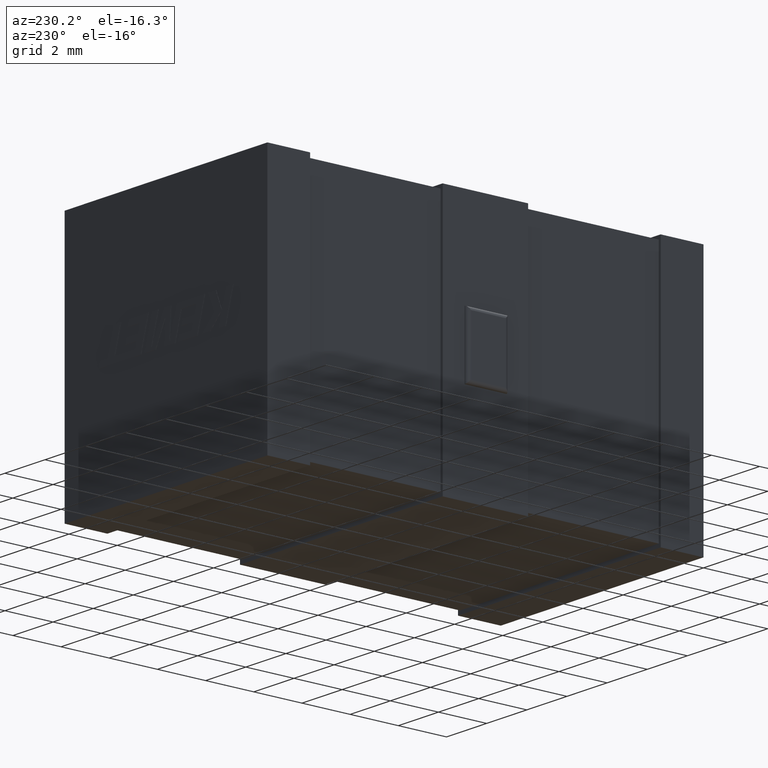
[diagram: clean part render]
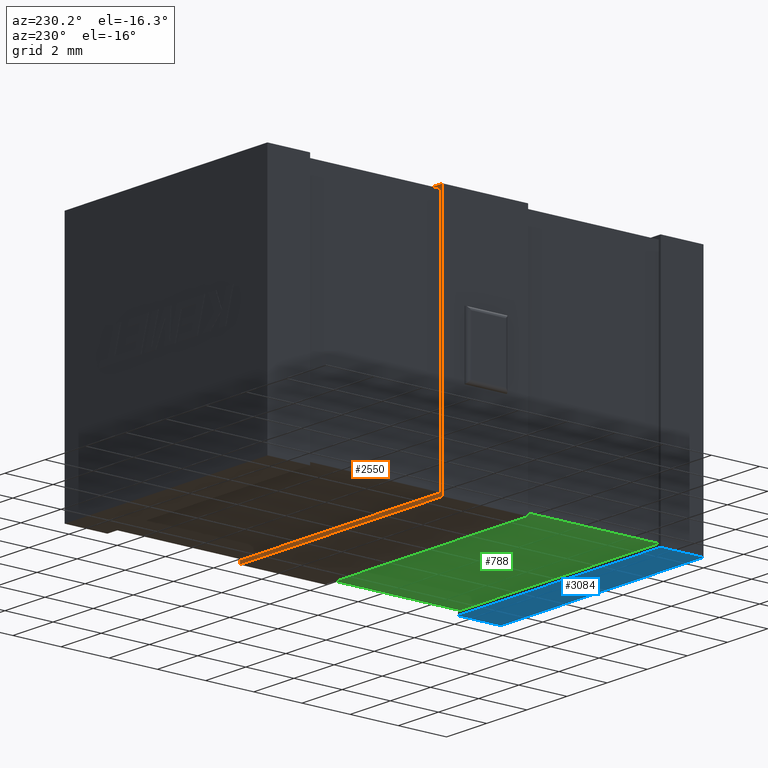
[diagram: same view with three faces highlighted in distinct colors, each labeled with its STEP entity id]
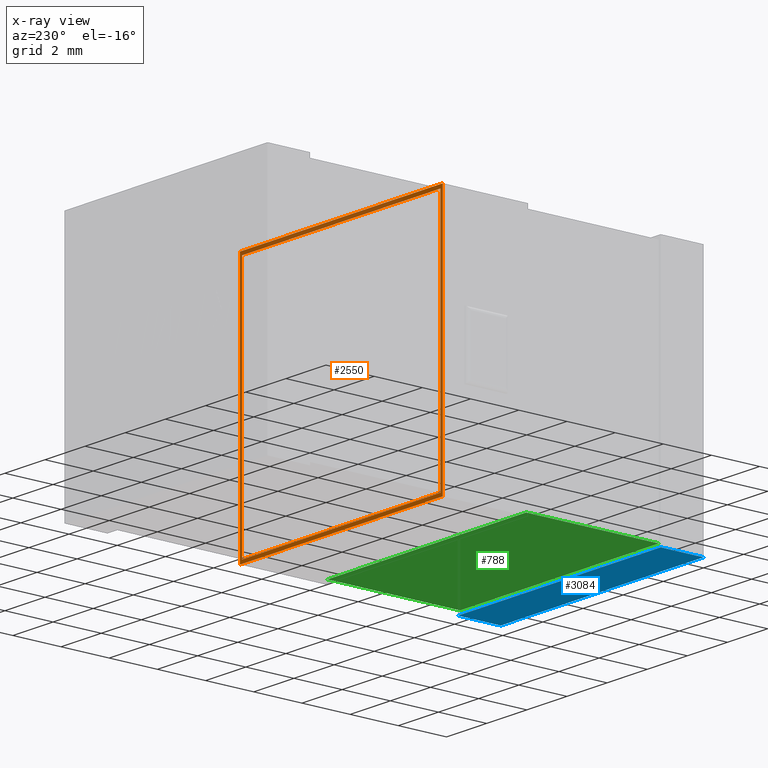
[diagram: x-ray of the same camera — body ghosted, the three highlighted faces saturated]
A machine part, auxiliary view with three faces highlighted in distinct colors.
The next image is the same camera in x-ray (body ghosted, the three faces saturated) — at least one of them is partly hidden behind the body in this view.
Their STEP definitions:

[orange] entity #2550 — the highlighted planar face has unit normal (0, -1, 0).
#93 = VECTOR ( 'NONE', #1493, 1000.000000000000000 ) ;
#101 = CARTESIAN_POINT ( 'NONE',  ( 0.0000000000000000000, 10.82379999999999900, 10.40000000000000000 ) ) ;
#124 = FACE_OUTER_BOUND ( 'NONE', #3353, .T. ) ;
#129 = CARTESIAN_POINT ( 'NONE',  ( 10.00000000000000000, 10.82380000000000200, 10.24999999999999800 ) ) ;
#237 = VECTOR ( 'NONE', #2591, 1000.000000000000000 ) ;
#302 = LINE ( 'NONE', #1216, #572 ) ;
#382 = LINE ( 'NONE', #1348, #688 ) ;
#435 = CARTESIAN_POINT ( 'NONE',  ( 4.480002920640842700E-016, 10.82380000000000200, 10.24999999999999800 ) ) ;
#493 = LINE ( 'NONE', #2880, #1678 ) ;
#494 = DIRECTION ( 'NONE',  ( -0.0000000000000000000, -0.0000000000000000000, 1.000000000000000000 ) ) ;
#560 = ORIENTED_EDGE ( 'NONE', *, *, #2215, .T. ) ;
#571 = EDGE_CURVE ( 'NONE', #735, #2804, #776, .T. ) ;
#572 = VECTOR ( 'NONE', #1746, 1000.000000000000000 ) ;
#650 = DIRECTION ( 'NONE',  ( 0.0000000000000000000, 0.0000000000000000000, -1.000000000000000000 ) ) ;
#657 = ORIENTED_EDGE ( 'NONE', *, *, #2398, .F. ) ;
#661 = CARTESIAN_POINT ( 'NONE',  ( 10.09999999999999800, 10.82380000000000200, 10.40000000000000000 ) ) ;
#662 = EDGE_CURVE ( 'NONE', #3043, #2184, #1590, .T. ) ;
#679 = CARTESIAN_POINT ( 'NONE',  ( 4.480002920640842700E-016, 10.82380000000000200, 0.1500000000000003600 ) ) ;
#688 = VECTOR ( 'NONE', #2401, 1000.000000000000000 ) ;
#702 = ORIENTED_EDGE ( 'NONE', *, *, #3258, .F. ) ;
#706 = CARTESIAN_POINT ( 'NONE',  ( 10.00000000000000000, 10.82380000000000200, 0.1500000000000003600 ) ) ;
#735 = VERTEX_POINT ( 'NONE', #2300 ) ;
#776 = LINE ( 'NONE', #2747, #1338 ) ;
#869 = ORIENTED_EDGE ( 'NONE', *, *, #571, .T. ) ;
#1051 = CARTESIAN_POINT ( 'NONE',  ( 4.480002920640842700E-016, 10.82380000000000200, 10.40000000000000000 ) ) ;
#1096 = FACE_BOUND ( 'NONE', #2542, .T. ) ;
#1169 = LINE ( 'NONE', #2744, #1500 ) ;
#1216 = CARTESIAN_POINT ( 'NONE',  ( 4.480002920640842700E-016, 10.82380000000000200, 10.24999999999999800 ) ) ;
#1236 = CARTESIAN_POINT ( 'NONE',  ( 0.1000000000000000100, 10.82380000000000200, 10.24999999999999800 ) ) ;
#1338 = VECTOR ( 'NONE', #2199, 1000.000000000000000 ) ;
#1348 = CARTESIAN_POINT ( 'NONE',  ( 10.00000000000000000, 10.82380000000000200, 10.24999999999999800 ) ) ;
#1420 = DIRECTION ( 'NONE',  ( 0.0000000000000000000, -1.000000000000000000, 0.0000000000000000000 ) ) ;
#1434 = ORIENTED_EDGE ( 'NONE', *, *, #662, .T. ) ;
#1493 = DIRECTION ( 'NONE',  ( 1.000000000000000000, 0.0000000000000000000, 0.0000000000000000000 ) ) ;
#1500 = VECTOR ( 'NONE', #650, 1000.000000000000000 ) ;
#1590 = LINE ( 'NONE', #679, #1843 ) ;
#1678 = VECTOR ( 'NONE', #494, 1000.000000000000000 ) ;
#1699 = DIRECTION ( 'NONE',  ( 0.0000000000000000000, -0.0000000000000000000, -1.000000000000000000 ) ) ;
#1746 = DIRECTION ( 'NONE',  ( 1.000000000000000000, 0.0000000000000000000, 0.0000000000000000000 ) ) ;
#1843 = VECTOR ( 'NONE', #3057, 1000.000000000000000 ) ;
#1869 = ORIENTED_EDGE ( 'NONE', *, *, #3220, .F. ) ;
#1932 = VERTEX_POINT ( 'NONE', #1236 ) ;
#2023 = VERTEX_POINT ( 'NONE', #129 ) ;
#2114 = LINE ( 'NONE', #1051, #237 ) ;
#2178 = EDGE_CURVE ( 'NONE', #1932, #2023, #302, .T. ) ;
#2184 = VERTEX_POINT ( 'NONE', #706 ) ;
#2199 = DIRECTION ( 'NONE',  ( -0.0000000000000000000, -0.0000000000000000000, 1.000000000000000000 ) ) ;
#2215 = EDGE_CURVE ( 'NONE', #1932, #3043, #1169, .T. ) ;
#2255 = AXIS2_PLACEMENT_3D ( 'NONE', #435, #1420, #1699 ) ;
#2300 = CARTESIAN_POINT ( 'NONE',  ( 4.480002920640842700E-016, 10.82380000000000200, 0.0000000000000000000 ) ) ;
#2398 = EDGE_CURVE ( 'NONE', #735, #2894, #2452, .T. ) ;
#2400 = ORIENTED_EDGE ( 'NONE', *, *, #2178, .F. ) ;
#2401 = DIRECTION ( 'NONE',  ( 0.0000000000000000000, 0.0000000000000000000, -1.000000000000000000 ) ) ;
#2452 = LINE ( 'NONE', #3033, #93 ) ;
#2495 = PLANE ( 'NONE',  #2255 ) ;
#2506 = VERTEX_POINT ( 'NONE', #661 ) ;
#2542 = EDGE_LOOP ( 'NONE', ( #2400, #560, #1434, #702 ) ) ;
#2550 = ADVANCED_FACE ( 'NONE', ( #1096, #124 ), #2495, .F. ) ;
#2591 = DIRECTION ( 'NONE',  ( 1.000000000000000000, 0.0000000000000000000, 0.0000000000000000000 ) ) ;
#2608 = CARTESIAN_POINT ( 'NONE',  ( 10.09999999999999800, 10.82380000000000200, 0.0000000000000000000 ) ) ;
#2744 = CARTESIAN_POINT ( 'NONE',  ( 0.1000000000000000100, 10.82380000000000200, 10.24999999999999800 ) ) ;
#2747 = CARTESIAN_POINT ( 'NONE',  ( 4.480002920640842700E-016, 10.82380000000000200, 10.24999999999999800 ) ) ;
#2761 = EDGE_CURVE ( 'NONE', #2804, #2506, #2114, .T. ) ;
#2804 = VERTEX_POINT ( 'NONE', #101 ) ;
#2880 = CARTESIAN_POINT ( 'NONE',  ( 10.09999999999999800, 10.82380000000000200, 10.24999999999999800 ) ) ;
#2894 = VERTEX_POINT ( 'NONE', #2608 ) ;
#2901 = ORIENTED_EDGE ( 'NONE', *, *, #2761, .T. ) ;
#2978 = CARTESIAN_POINT ( 'NONE',  ( 0.1000000000000000100, 10.82380000000000200, 0.1500000000000003600 ) ) ;
#3033 = CARTESIAN_POINT ( 'NONE',  ( 4.480002920640842700E-016, 10.82380000000000200, 0.0000000000000000000 ) ) ;
#3043 = VERTEX_POINT ( 'NONE', #2978 ) ;
#3057 = DIRECTION ( 'NONE',  ( 1.000000000000000000, 0.0000000000000000000, 0.0000000000000000000 ) ) ;
#3220 = EDGE_CURVE ( 'NONE', #2894, #2506, #493, .T. ) ;
#3258 = EDGE_CURVE ( 'NONE', #2023, #2184, #382, .T. ) ;
#3353 = EDGE_LOOP ( 'NONE', ( #2901, #1869, #657, #869 ) ) ;

[blue] entity #3084 — the highlighted planar face has unit normal (0, 0, -1).
#267 = CARTESIAN_POINT ( 'NONE',  ( 10.10000000000000000, 0.0000000000000000000, 0.0000000000000000000 ) ) ;
#325 = VERTEX_POINT ( 'NONE', #267 ) ;
#409 = DIRECTION ( 'NONE',  ( 0.0000000000000000000, 1.000000000000000000, 0.0000000000000000000 ) ) ;
#422 = LINE ( 'NONE', #925, #2678 ) ;
#471 = CARTESIAN_POINT ( 'NONE',  ( 0.0000000000000000000, 0.0000000000000000000, 0.0000000000000000000 ) ) ;
#491 = AXIS2_PLACEMENT_3D ( 'NONE', #2030, #3074, #3115 ) ;
#537 = CARTESIAN_POINT ( 'NONE',  ( 1.999382857223951600E-015, 1.773799999999999800, 0.0000000000000000000 ) ) ;
#582 = LINE ( 'NONE', #2672, #2337 ) ;
#611 = VECTOR ( 'NONE', #2961, 1000.000000000000000 ) ;
#635 = ORIENTED_EDGE ( 'NONE', *, *, #1701, .F. ) ;
#912 = CARTESIAN_POINT ( 'NONE',  ( 10.09999999999999800, 1.773799999999999800, 0.0000000000000000000 ) ) ;
#925 = CARTESIAN_POINT ( 'NONE',  ( 0.0000000000000000000, 0.0000000000000000000, 0.0000000000000000000 ) ) ;
#1120 = ORIENTED_EDGE ( 'NONE', *, *, #3368, .T. ) ;
#1191 = DIRECTION ( 'NONE',  ( -0.0000000000000000000, -1.000000000000000000, -0.0000000000000000000 ) ) ;
#1247 = ORIENTED_EDGE ( 'NONE', *, *, #2571, .F. ) ;
#1414 = LINE ( 'NONE', #2177, #611 ) ;
#1418 = FACE_OUTER_BOUND ( 'NONE', #1851, .T. ) ;
#1448 = LINE ( 'NONE', #471, #2368 ) ;
#1691 = ORIENTED_EDGE ( 'NONE', *, *, #1788, .F. ) ;
#1701 = EDGE_CURVE ( 'NONE', #325, #2259, #582, .T. ) ;
#1788 = EDGE_CURVE ( 'NONE', #2967, #2658, #422, .T. ) ;
#1851 = EDGE_LOOP ( 'NONE', ( #1691, #1120, #635, #1247 ) ) ;
#2030 = CARTESIAN_POINT ( 'NONE',  ( 0.0000000000000000000, 0.0000000000000000000, 0.0000000000000000000 ) ) ;
#2084 = CARTESIAN_POINT ( 'NONE',  ( 0.0000000000000000000, 0.0000000000000000000, 0.0000000000000000000 ) ) ;
#2177 = CARTESIAN_POINT ( 'NONE',  ( 1.999382857223951600E-015, 1.773799999999999800, 0.0000000000000000000 ) ) ;
#2259 = VERTEX_POINT ( 'NONE', #912 ) ;
#2337 = VECTOR ( 'NONE', #409, 1000.000000000000000 ) ;
#2368 = VECTOR ( 'NONE', #2823, 1000.000000000000000 ) ;
#2526 = PLANE ( 'NONE',  #491 ) ;
#2571 = EDGE_CURVE ( 'NONE', #2658, #325, #1448, .T. ) ;
#2658 = VERTEX_POINT ( 'NONE', #2084 ) ;
#2672 = CARTESIAN_POINT ( 'NONE',  ( 10.10000000000000000, 0.0000000000000000000, 0.0000000000000000000 ) ) ;
#2678 = VECTOR ( 'NONE', #1191, 1000.000000000000000 ) ;
#2823 = DIRECTION ( 'NONE',  ( 1.000000000000000000, 0.0000000000000000000, 0.0000000000000000000 ) ) ;
#2961 = DIRECTION ( 'NONE',  ( 1.000000000000000000, 0.0000000000000000000, 0.0000000000000000000 ) ) ;
#2967 = VERTEX_POINT ( 'NONE', #537 ) ;
#3074 = DIRECTION ( 'NONE',  ( 0.0000000000000000000, 0.0000000000000000000, -1.000000000000000000 ) ) ;
#3084 = ADVANCED_FACE ( 'NONE', ( #1418 ), #2526, .T. ) ;
#3115 = DIRECTION ( 'NONE',  ( -1.000000000000000000, 0.0000000000000000000, -0.0000000000000000000 ) ) ;
#3368 = EDGE_CURVE ( 'NONE', #2967, #2259, #1414, .T. ) ;

[green] entity #788 — the highlighted planar face has unit normal (0, 0, -1).
#59 = AXIS2_PLACEMENT_3D ( 'NONE', #1514, #3349, #2320 ) ;
#60 = VECTOR ( 'NONE', #1144, 1000.000000000000000 ) ;
#230 = VECTOR ( 'NONE', #2366, 1000.000000000000000 ) ;
#239 = VERTEX_POINT ( 'NONE', #2818 ) ;
#416 = CARTESIAN_POINT ( 'NONE',  ( 10.00000000000000000, 7.276200000000000200, 0.1500000000000010500 ) ) ;
#492 = CARTESIAN_POINT ( 'NONE',  ( 1.999382857223951600E-015, 1.773799999999999800, 0.1500000000000003600 ) ) ;
#498 = CARTESIAN_POINT ( 'NONE',  ( 1.325533202461112200E-015, 7.276200000000000200, 0.1500000000000003600 ) ) ;
#541 = ORIENTED_EDGE ( 'NONE', *, *, #3108, .F. ) ;
#649 = ORIENTED_EDGE ( 'NONE', *, *, #1589, .T. ) ;
#788 = ADVANCED_FACE ( 'NONE', ( #2451 ), #970, .T. ) ;
#970 = PLANE ( 'NONE',  #59 ) ;
#1003 = DIRECTION ( 'NONE',  ( -1.000000000000000000, -0.0000000000000000000, 0.0000000000000000000 ) ) ;
#1144 = DIRECTION ( 'NONE',  ( -0.0000000000000000000, 1.000000000000000000, 1.231510536862896700E-016 ) ) ;
#1389 = EDGE_CURVE ( 'NONE', #3222, #2395, #1655, .T. ) ;
#1485 = DIRECTION ( 'NONE',  ( 1.000000000000000000, 0.0000000000000000000, 0.0000000000000000000 ) ) ;
#1514 = CARTESIAN_POINT ( 'NONE',  ( 0.0000000000000000000, 0.0000000000000000000, 0.1500000000000003600 ) ) ;
#1589 = EDGE_CURVE ( 'NONE', #3222, #239, #1773, .T. ) ;
#1655 = LINE ( 'NONE', #492, #1971 ) ;
#1695 = ORIENTED_EDGE ( 'NONE', *, *, #1389, .F. ) ;
#1773 = LINE ( 'NONE', #2354, #230 ) ;
#1835 = EDGE_CURVE ( 'NONE', #2290, #239, #2788, .T. ) ;
#1893 = VECTOR ( 'NONE', #1003, 1000.000000000000000 ) ;
#1971 = VECTOR ( 'NONE', #1485, 1000.000000000000000 ) ;
#2219 = EDGE_LOOP ( 'NONE', ( #1695, #649, #3079, #541 ) ) ;
#2288 = LINE ( 'NONE', #2456, #60 ) ;
#2290 = VERTEX_POINT ( 'NONE', #416 ) ;
#2320 = DIRECTION ( 'NONE',  ( 1.000000000000000000, 0.0000000000000000000, 0.0000000000000000000 ) ) ;
#2354 = CARTESIAN_POINT ( 'NONE',  ( 0.1000000000000000100, 7.276200000000000200, 0.1500000000000010500 ) ) ;
#2366 = DIRECTION ( 'NONE',  ( 0.0000000000000000000, 1.000000000000000000, 1.231510536862896700E-016 ) ) ;
#2395 = VERTEX_POINT ( 'NONE', #2534 ) ;
#2451 = FACE_OUTER_BOUND ( 'NONE', #2219, .T. ) ;
#2456 = CARTESIAN_POINT ( 'NONE',  ( 10.00000000000000000, 7.276200000000000200, 0.1500000000000010500 ) ) ;
#2534 = CARTESIAN_POINT ( 'NONE',  ( 9.999999999999996400, 1.773799999999999800, 0.1500000000000003600 ) ) ;
#2788 = LINE ( 'NONE', #498, #1893 ) ;
#2818 = CARTESIAN_POINT ( 'NONE',  ( 0.1000000000000000100, 7.276200000000000200, 0.1500000000000010500 ) ) ;
#3079 = ORIENTED_EDGE ( 'NONE', *, *, #1835, .F. ) ;
#3102 = CARTESIAN_POINT ( 'NONE',  ( 0.09999999999999997800, 1.773799999999999800, 0.1500000000000003600 ) ) ;
#3108 = EDGE_CURVE ( 'NONE', #2395, #2290, #2288, .T. ) ;
#3222 = VERTEX_POINT ( 'NONE', #3102 ) ;
#3349 = DIRECTION ( 'NONE',  ( 0.0000000000000000000, 0.0000000000000000000, -1.000000000000000000 ) ) ;